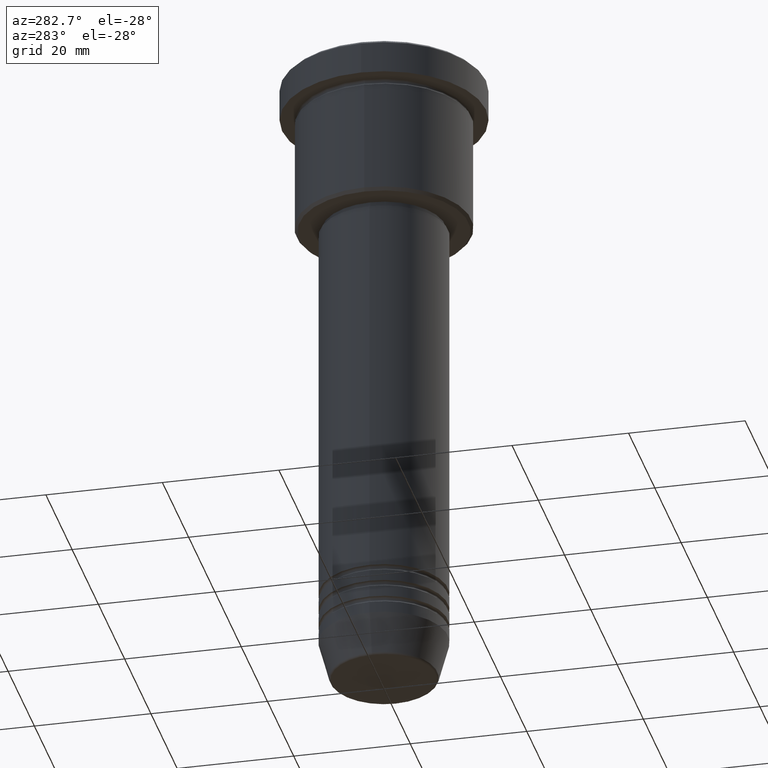
[diagram: clean part render]
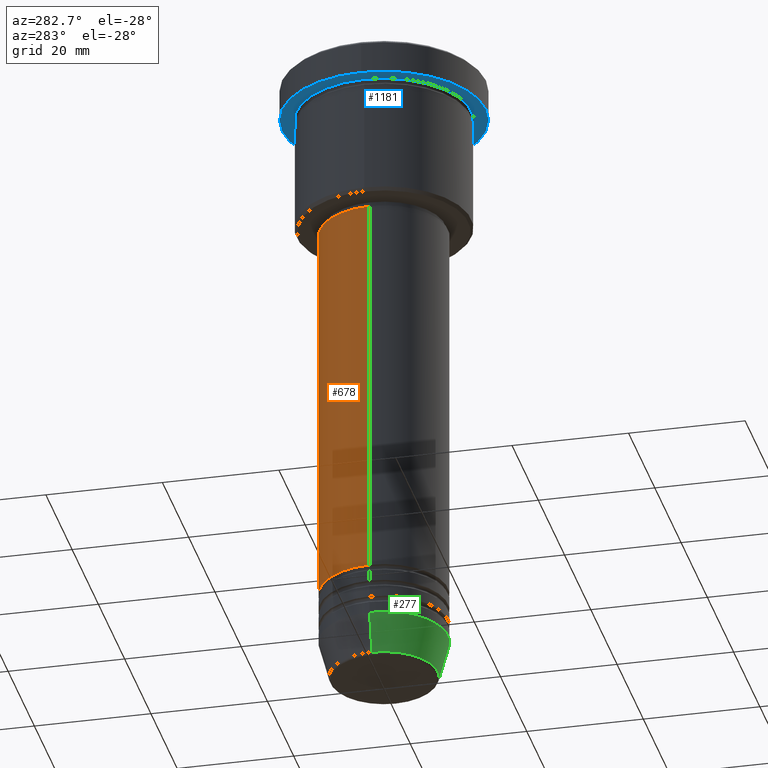
[diagram: same view with three faces highlighted in distinct colors, each labeled with its STEP entity id]
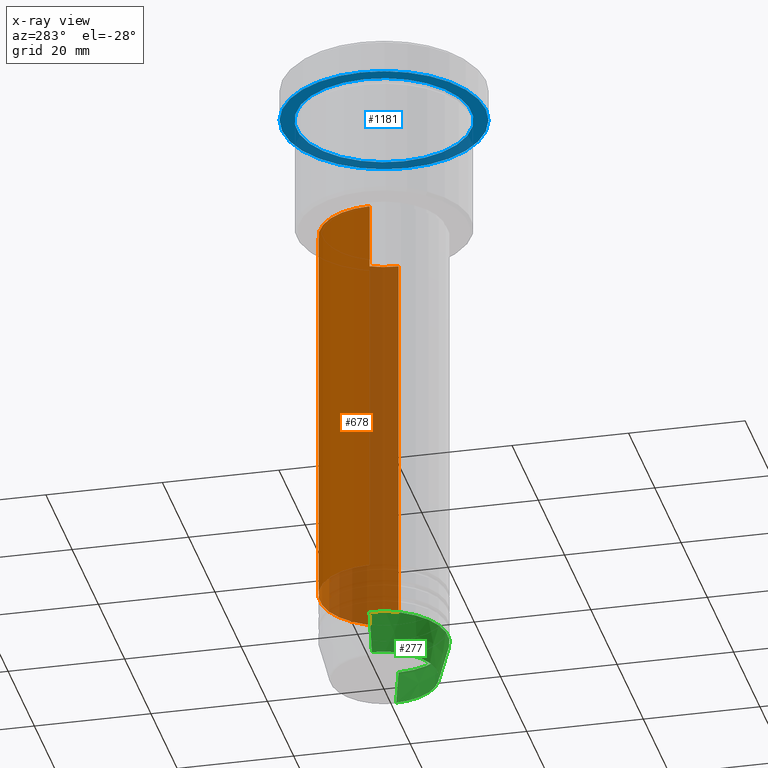
[diagram: x-ray of the same camera — body ghosted, the three highlighted faces saturated]
A machine part, auxiliary view with three faces highlighted in distinct colors.
The next image is the same camera in x-ray (body ghosted, the three faces saturated) — at least one of them is partly hidden behind the body in this view.
Their STEP definitions:

[orange] entity #678 — the highlighted cylindrical surface (partial cylindrical patch) has radius 11 mm, axis along (-0, -0, 1).
#13 = ORIENTED_EDGE ( 'NONE', *, *, #295, .T. ) ;
#108 = CARTESIAN_POINT ( 'NONE',  ( -11.00000000000000000, 1.347111479062088405E-15, -95.99999999999997158 ) ) ;
#173 = CARTESIAN_POINT ( 'NONE',  ( 11.00000000000000000, 0.000000000000000000, 0.000000000000000000 ) ) ;
#185 = CARTESIAN_POINT ( 'NONE',  ( 11.00000000000000000, 0.000000000000000000, -28.00000000000000355 ) ) ;
#256 = FACE_OUTER_BOUND ( 'NONE', #1158, .T. ) ;
#264 = CARTESIAN_POINT ( 'NONE',  ( 0.000000000000000000, 0.000000000000000000, 0.000000000000000000 ) ) ;
#273 = LINE ( 'NONE', #900, #1032 ) ;
#295 = EDGE_CURVE ( 'NONE', #544, #872, #624, .T. ) ;
#297 = CIRCLE ( 'NONE', #791, 11.00000000000000000 ) ;
#329 = VECTOR ( 'NONE', #1076, 1000.000000000000000 ) ;
#334 = DIRECTION ( 'NONE',  ( -0.000000000000000000, -0.000000000000000000, 1.000000000000000000 ) ) ;
#375 = CARTESIAN_POINT ( 'NONE',  ( -11.00000000000000000, 1.347111479062088405E-15, -28.00000000000000355 ) ) ;
#397 = ORIENTED_EDGE ( 'NONE', *, *, #1116, .F. ) ;
#404 = AXIS2_PLACEMENT_3D ( 'NONE', #891, #334, #1064 ) ;
#498 = ORIENTED_EDGE ( 'NONE', *, *, #1022, .F. ) ;
#538 = CARTESIAN_POINT ( 'NONE',  ( 0.000000000000000000, 0.000000000000000000, -28.00000000000000355 ) ) ;
#544 = VERTEX_POINT ( 'NONE', #1051 ) ;
#570 = EDGE_CURVE ( 'NONE', #872, #690, #273, .T. ) ;
#620 = VERTEX_POINT ( 'NONE', #185 ) ;
#624 = CIRCLE ( 'NONE', #404, 11.00000000000000000 ) ;
#678 = ADVANCED_FACE ( 'NONE', ( #256 ), #1078, .T. ) ;
#690 = VERTEX_POINT ( 'NONE', #375 ) ;
#723 = ORIENTED_EDGE ( 'NONE', *, *, #570, .T. ) ;
#731 = DIRECTION ( 'NONE',  ( -0.000000000000000000, -0.000000000000000000, 1.000000000000000000 ) ) ;
#791 = AXIS2_PLACEMENT_3D ( 'NONE', #538, #905, #910 ) ;
#826 = LINE ( 'NONE', #173, #329 ) ;
#872 = VERTEX_POINT ( 'NONE', #108 ) ;
#891 = CARTESIAN_POINT ( 'NONE',  ( 0.000000000000000000, 0.000000000000000000, -95.99999999999997158 ) ) ;
#900 = CARTESIAN_POINT ( 'NONE',  ( -11.00000000000000000, 1.347111479062088405E-15, 0.000000000000000000 ) ) ;
#905 = DIRECTION ( 'NONE',  ( -0.000000000000000000, -0.000000000000000000, 1.000000000000000000 ) ) ;
#910 = DIRECTION ( 'NONE',  ( 1.000000000000000000, 0.000000000000000000, 0.000000000000000000 ) ) ;
#987 = DIRECTION ( 'NONE',  ( 1.000000000000000000, 0.000000000000000000, 0.000000000000000000 ) ) ;
#1012 = DIRECTION ( 'NONE',  ( -0.000000000000000000, -0.000000000000000000, 1.000000000000000000 ) ) ;
#1014 = AXIS2_PLACEMENT_3D ( 'NONE', #264, #1012, #987 ) ;
#1022 = EDGE_CURVE ( 'NONE', #544, #620, #826, .T. ) ;
#1032 = VECTOR ( 'NONE', #731, 1000.000000000000000 ) ;
#1051 = CARTESIAN_POINT ( 'NONE',  ( 11.00000000000000000, 0.000000000000000000, -95.99999999999997158 ) ) ;
#1064 = DIRECTION ( 'NONE',  ( 1.000000000000000000, 0.000000000000000000, 0.000000000000000000 ) ) ;
#1076 = DIRECTION ( 'NONE',  ( -0.000000000000000000, -0.000000000000000000, 1.000000000000000000 ) ) ;
#1078 = CYLINDRICAL_SURFACE ( 'NONE', #1014, 11.00000000000000000 ) ;
#1116 = EDGE_CURVE ( 'NONE', #620, #690, #297, .T. ) ;
#1158 = EDGE_LOOP ( 'NONE', ( #13, #723, #397, #498 ) ) ;

[blue] entity #1181 — the highlighted planar face has unit normal (0, 0, -1).
#16 = CARTESIAN_POINT ( 'NONE',  ( 0.000000000000000000, 0.000000000000000000, -5.999999999999995559 ) ) ;
#24 = DIRECTION ( 'NONE',  ( -1.000000000000000000, 0.000000000000000000, -0.000000000000000000 ) ) ;
#54 = AXIS2_PLACEMENT_3D ( 'NONE', #16, #214, #751 ) ;
#57 = VERTEX_POINT ( 'NONE', #188 ) ;
#88 = AXIS2_PLACEMENT_3D ( 'NONE', #943, #123, #24 ) ;
#93 = ORIENTED_EDGE ( 'NONE', *, *, #171, .F. ) ;
#96 = AXIS2_PLACEMENT_3D ( 'NONE', #475, #196, #859 ) ;
#99 = EDGE_CURVE ( 'NONE', #1092, #57, #129, .T. ) ;
#114 = AXIS2_PLACEMENT_3D ( 'NONE', #318, #1045, #959 ) ;
#123 = DIRECTION ( 'NONE',  ( 0.000000000000000000, 0.000000000000000000, -1.000000000000000000 ) ) ;
#124 = ORIENTED_EDGE ( 'NONE', *, *, #99, .T. ) ;
#129 = CIRCLE ( 'NONE', #54, 15.00000000000000000 ) ;
#158 = VERTEX_POINT ( 'NONE', #1112 ) ;
#171 = EDGE_CURVE ( 'NONE', #863, #158, #287, .T. ) ;
#188 = CARTESIAN_POINT ( 'NONE',  ( -15.00000000000000000, 0.000000000000000000, -5.999999999999994671 ) ) ;
#196 = DIRECTION ( 'NONE',  ( -0.000000000000000000, -0.000000000000000000, 1.000000000000000000 ) ) ;
#214 = DIRECTION ( 'NONE',  ( -0.000000000000000000, -0.000000000000000000, 1.000000000000000000 ) ) ;
#237 = CIRCLE ( 'NONE', #637, 15.00000000000000000 ) ;
#287 = CIRCLE ( 'NONE', #96, 17.50000000000000000 ) ;
#318 = CARTESIAN_POINT ( 'NONE',  ( 0.000000000000000000, 0.000000000000000000, -5.999999999999995559 ) ) ;
#353 = EDGE_CURVE ( 'NONE', #158, #863, #822, .T. ) ;
#475 = CARTESIAN_POINT ( 'NONE',  ( 0.000000000000000000, 0.000000000000000000, -5.999999999999995559 ) ) ;
#564 = PLANE ( 'NONE',  #88 ) ;
#566 = EDGE_LOOP ( 'NONE', ( #714, #124 ) ) ;
#629 = CARTESIAN_POINT ( 'NONE',  ( 0.000000000000000000, 0.000000000000000000, -5.999999999999995559 ) ) ;
#637 = AXIS2_PLACEMENT_3D ( 'NONE', #629, #1164, #999 ) ;
#714 = ORIENTED_EDGE ( 'NONE', *, *, #1131, .T. ) ;
#751 = DIRECTION ( 'NONE',  ( -1.000000000000000000, 0.000000000000000000, 0.000000000000000000 ) ) ;
#822 = CIRCLE ( 'NONE', #114, 17.50000000000000000 ) ;
#844 = FACE_OUTER_BOUND ( 'NONE', #1080, .T. ) ;
#859 = DIRECTION ( 'NONE',  ( 1.000000000000000000, 0.000000000000000000, 0.000000000000000000 ) ) ;
#863 = VERTEX_POINT ( 'NONE', #941 ) ;
#941 = CARTESIAN_POINT ( 'NONE',  ( -17.50000000000000000, 2.143131898507868248E-15, -5.999999999999995559 ) ) ;
#943 = CARTESIAN_POINT ( 'NONE',  ( 0.000000000000000000, 17.50000000000000000, -5.999999999999995559 ) ) ;
#959 = DIRECTION ( 'NONE',  ( 1.000000000000000000, 0.000000000000000000, 0.000000000000000000 ) ) ;
#990 = CARTESIAN_POINT ( 'NONE',  ( 15.00000000000000000, 1.836970198721029589E-15, -5.999999999999994671 ) ) ;
#999 = DIRECTION ( 'NONE',  ( -1.000000000000000000, 0.000000000000000000, 0.000000000000000000 ) ) ;
#1045 = DIRECTION ( 'NONE',  ( -0.000000000000000000, -0.000000000000000000, 1.000000000000000000 ) ) ;
#1080 = EDGE_LOOP ( 'NONE', ( #1177, #93 ) ) ;
#1092 = VERTEX_POINT ( 'NONE', #990 ) ;
#1112 = CARTESIAN_POINT ( 'NONE',  ( 17.50000000000000000, 0.000000000000000000, -5.999999999999995559 ) ) ;
#1117 = FACE_BOUND ( 'NONE', #566, .T. ) ;
#1131 = EDGE_CURVE ( 'NONE', #57, #1092, #237, .T. ) ;
#1164 = DIRECTION ( 'NONE',  ( -0.000000000000000000, -0.000000000000000000, 1.000000000000000000 ) ) ;
#1177 = ORIENTED_EDGE ( 'NONE', *, *, #353, .F. ) ;
#1181 = ADVANCED_FACE ( 'NONE', ( #1117, #844 ), #564, .T. ) ;

[green] entity #277 — the highlighted conical surface has half-angle 15 deg.
#22 = AXIS2_PLACEMENT_3D ( 'NONE', #59, #65, #500 ) ;
#59 = CARTESIAN_POINT ( 'NONE',  ( 0.000000000000000000, 0.000000000000000000, -105.0000000000000142 ) ) ;
#65 = DIRECTION ( 'NONE',  ( -0.000000000000000000, -0.000000000000000000, 1.000000000000000000 ) ) ;
#69 = DIRECTION ( 'NONE',  ( 1.000000000000000000, 0.000000000000000000, 0.000000000000000000 ) ) ;
#78 = AXIS2_PLACEMENT_3D ( 'NONE', #135, #222, #154 ) ;
#110 = ORIENTED_EDGE ( 'NONE', *, *, #1183, .T. ) ;
#135 = CARTESIAN_POINT ( 'NONE',  ( 0.000000000000000000, 0.000000000000000000, -111.6294095225512564 ) ) ;
#136 = CARTESIAN_POINT ( 'NONE',  ( -11.00000000000000000, 1.347111479062088405E-15, -105.0000000000000142 ) ) ;
#154 = DIRECTION ( 'NONE',  ( 1.000000000000000000, 0.000000000000000000, 0.000000000000000000 ) ) ;
#156 = FACE_OUTER_BOUND ( 'NONE', #288, .T. ) ;
#221 = VERTEX_POINT ( 'NONE', #522 ) ;
#222 = DIRECTION ( 'NONE',  ( -0.000000000000000000, -0.000000000000000000, 1.000000000000000000 ) ) ;
#234 = EDGE_CURVE ( 'NONE', #906, #520, #592, .T. ) ;
#277 = ADVANCED_FACE ( 'NONE', ( #156 ), #664, .T. ) ;
#288 = EDGE_LOOP ( 'NONE', ( #695, #293, #110, #681 ) ) ;
#293 = ORIENTED_EDGE ( 'NONE', *, *, #926, .T. ) ;
#430 = CARTESIAN_POINT ( 'NONE',  ( -9.223655072137191269, 1.238341722557647202E-15, -111.6294095225512564 ) ) ;
#476 = CIRCLE ( 'NONE', #78, 9.223655072137191269 ) ;
#500 = DIRECTION ( 'NONE',  ( 1.000000000000000000, 0.000000000000000000, 0.000000000000000000 ) ) ;
#520 = VERTEX_POINT ( 'NONE', #136 ) ;
#522 = CARTESIAN_POINT ( 'NONE',  ( 9.223655072137191269, 0.000000000000000000, -111.6294095225512564 ) ) ;
#565 = AXIS2_PLACEMENT_3D ( 'NONE', #965, #599, #69 ) ;
#592 = LINE ( 'NONE', #772, #974 ) ;
#599 = DIRECTION ( 'NONE',  ( -0.000000000000000000, -0.000000000000000000, 1.000000000000000000 ) ) ;
#654 = DIRECTION ( 'NONE',  ( 0.2588190451025213501, 0.000000000000000000, 0.9659258262890680902 ) ) ;
#664 = CONICAL_SURFACE ( 'NONE', #565, 11.00000000000000000, 0.2617993877991500740 ) ;
#681 = ORIENTED_EDGE ( 'NONE', *, *, #896, .F. ) ;
#695 = ORIENTED_EDGE ( 'NONE', *, *, #234, .F. ) ;
#752 = CARTESIAN_POINT ( 'NONE',  ( 11.00000000000000000, 0.000000000000000000, -105.0000000000000142 ) ) ;
#772 = CARTESIAN_POINT ( 'NONE',  ( -11.00000000000000000, 1.347111479062088405E-15, -105.0000000000000142 ) ) ;
#869 = CARTESIAN_POINT ( 'NONE',  ( 11.00000000000000000, 0.000000000000000000, -105.0000000000000142 ) ) ;
#896 = EDGE_CURVE ( 'NONE', #520, #916, #957, .T. ) ;
#906 = VERTEX_POINT ( 'NONE', #430 ) ;
#916 = VERTEX_POINT ( 'NONE', #869 ) ;
#926 = EDGE_CURVE ( 'NONE', #906, #221, #476, .T. ) ;
#957 = CIRCLE ( 'NONE', #22, 11.00000000000000000 ) ;
#965 = CARTESIAN_POINT ( 'NONE',  ( 0.000000000000000000, 0.000000000000000000, -105.0000000000000142 ) ) ;
#974 = VECTOR ( 'NONE', #1139, 1000.000000000000000 ) ;
#1016 = LINE ( 'NONE', #752, #1025 ) ;
#1025 = VECTOR ( 'NONE', #654, 1000.000000000000000 ) ;
#1139 = DIRECTION ( 'NONE',  ( -0.2588190451025213501, 3.169619151431772337E-17, 0.9659258262890680902 ) ) ;
#1183 = EDGE_CURVE ( 'NONE', #221, #916, #1016, .T. ) ;